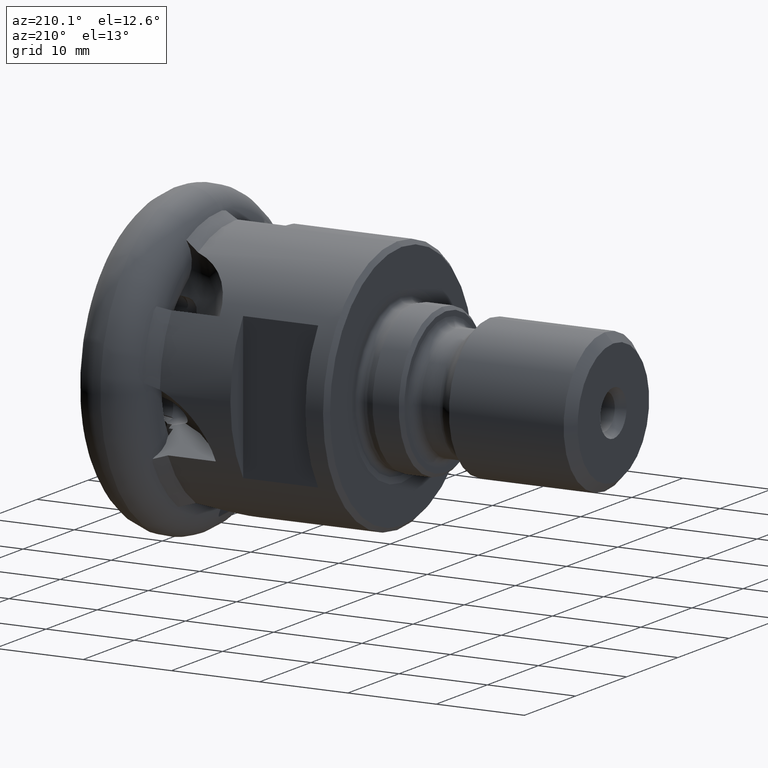
[diagram: clean part render]
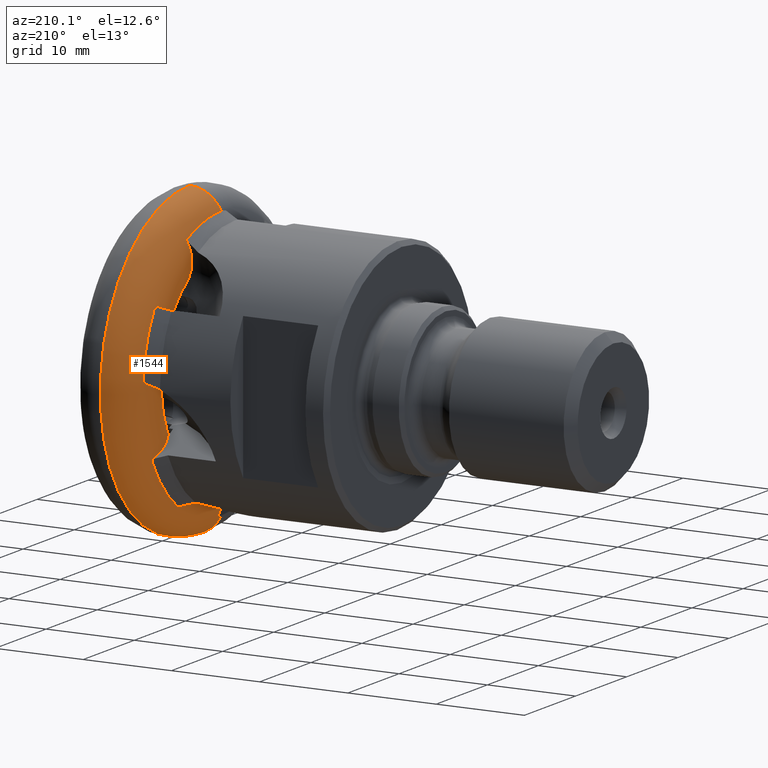
[diagram: same view with one face highlighted and labeled with its STEP entity id]
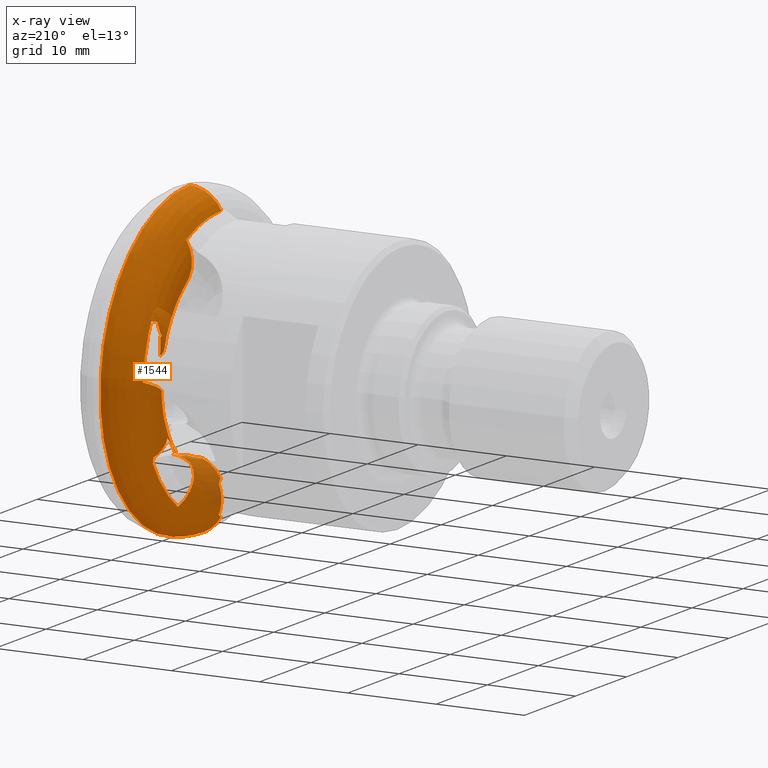
[diagram: x-ray of the same camera — body ghosted, the highlighted face saturated]
A machine part, auxiliary view. The second image highlights one B-rep face of the part: STEP entity #1544.
The next image is the same camera in x-ray: the body ghosted, the highlighted face saturated — about 4% of this face is hidden behind the body in this view.
In plain terms, the highlighted toroidal blend (fillet) surface has major radius 13.5005 mm and minor (blend) radius 4 mm.
Its self-contained STEP definition (entity closure, byte-faithful):
#9 = VERTEX_POINT ( 'NONE', #4791 ) ;
#43 = CARTESIAN_POINT ( 'NONE',  ( -6.970320713691037900, 10.40394991151712600, 6.815013658915133600 ) ) ;
#60 = CARTESIAN_POINT ( 'NONE',  ( -5.986730787056101700, 6.288281332381972200, 8.678202879827644300 ) ) ;
#67 = CARTESIAN_POINT ( 'NONE',  ( -3.481183792056709200, 9.413425898289794700, -1.378572529493553100 ) ) ;
#79 = ORIENTED_EDGE ( 'NONE', *, *, #5759, .F. ) ;
#84 = VERTEX_POINT ( 'NONE', #8210 ) ;
#86 = CARTESIAN_POINT ( 'NONE',  ( -6.722760441309596900, 0.4710116724698273400, -11.78001899677491500 ) ) ;
#91 = CARTESIAN_POINT ( 'NONE',  ( -7.019371207810117100, 14.34732973608849000, 0.6689121888450262300 ) ) ;
#117 = B_SPLINE_CURVE_WITH_KNOTS ( 'NONE', 3,
 ( #7926, #2093, #5407, #3491 ),
 .UNSPECIFIED., .F., .F.,
 ( 4, 4 ),
 ( 0.006134152128898172900, 0.006163361961100824800 ),
 .UNSPECIFIED. ) ;
#119 = EDGE_CURVE ( 'NONE', #6635, #3023, #4309, .T. ) ;
#121 = VERTEX_POINT ( 'NONE', #6385 ) ;
#129 = CARTESIAN_POINT ( 'NONE',  ( -5.526633514398452200, 7.276038415924639400, -7.314251030014575300 ) ) ;
#141 = CARTESIAN_POINT ( 'NONE',  ( -5.162852589870918300, 8.377416124794359900, -5.588764644931055500 ) ) ;
#148 = CARTESIAN_POINT ( 'NONE',  ( -6.714285215743751100, 9.966705976618239800, 6.261205032704414600 ) ) ;
#149 = ORIENTED_EDGE ( 'NONE', *, *, #6216, .T. ) ;
#151 = DIRECTION ( 'NONE',  ( 0.0000000000000000000, 0.0000000000000000000, -1.000000000000000000 ) ) ;
#179 = CARTESIAN_POINT ( 'NONE',  ( -3.703226784205822900, 8.602641880861920500, -4.110547972345755400 ) ) ;
#189 = CARTESIAN_POINT ( 'NONE',  ( -6.783404308883628000, 13.41843757786559800, -6.863001976314252200 ) ) ;
#218 = CARTESIAN_POINT ( 'NONE',  ( -6.445010153533528000, 8.529960899617158500, -7.409172669915280500 ) ) ;
#223 = CARTESIAN_POINT ( 'NONE',  ( -5.176037658426658100, 9.101560984280702400, 4.328633947039207000 ) ) ;
#225 = VERTEX_POINT ( 'NONE', #223 ) ;
#233 = CARTESIAN_POINT ( 'NONE',  ( -3.104893265785153600, 8.573260646012569100, -4.093755213144413900 ) ) ;
#235 = CARTESIAN_POINT ( 'NONE',  ( -3.481184526236251300, 3.474222297960039900, -8.856795722764188000 ) ) ;
#239 = CIRCLE ( 'NONE', #5200, 15.33755113536582500 ) ;
#242 = CARTESIAN_POINT ( 'NONE',  ( -6.876233390981617800, 6.738145968232669400, 13.24279356623489300 ) ) ;
#284 = VERTEX_POINT ( 'NONE', #6041 ) ;
#289 = ORIENTED_EDGE ( 'NONE', *, *, #629, .F. ) ;
#324 = ORIENTED_EDGE ( 'NONE', *, *, #595, .T. ) ;
#361 = CARTESIAN_POINT ( 'NONE',  ( -6.428181554940599600, 9.454371384974514600, -6.142278772953953400 ) ) ;
#362 = CARTESIAN_POINT ( 'NONE',  ( -6.146889535571781400, 6.288428992730740900, 8.894433927067829900 ) ) ;
#382 = CARTESIAN_POINT ( 'NONE',  ( -5.441405552378646400, 3.840656990347505400, -9.498386720059722100 ) ) ;
#430 = CARTESIAN_POINT ( 'NONE',  ( -3.405340194388836400, 0.6999999999999988500, -9.483217836396102400 ) ) ;
#440 = CARTESIAN_POINT ( 'NONE',  ( -6.565155809997676800, 5.152788816856125100, -10.25865581496785400 ) ) ;
#468 = CARTESIAN_POINT ( 'NONE',  ( -5.549766439993623700, 9.999784225591726600, 2.609498639324298700 ) ) ;
#471 = CARTESIAN_POINT ( 'NONE',  ( -6.783404308883628000, 13.41843757786559800, -6.863001976314252200 ) ) ;
#480 = CARTESIAN_POINT ( 'NONE',  ( -3.104893265785153600, 0.0000000000000000000, 0.0000000000000000000 ) ) ;
#506 = DIRECTION ( 'NONE',  ( 0.0000000000000000000, 0.0000000000000000000, -1.000000000000000000 ) ) ;
#512 = CARTESIAN_POINT ( 'NONE',  ( -6.658098605453361100, 0.0000000000000000000, -15.33755113536582300 ) ) ;
#534 = B_SPLINE_CURVE_WITH_KNOTS ( 'NONE', 3,
 ( #4474, #5099, #242, #1936, #6422, #5909, #7814, #875, #2578, #1447, #7194, #3354, #7845, #362, #60, #552, #6706, #7908 ),
 .UNSPECIFIED., .F., .F.,
 ( 4, 2, 2, 2, 2, 2, 2, 2, 4 ),
 ( 0.001267977658628080700, 0.002075521505515490000, 0.002883065352402899200, 0.003690609199290308300, 0.004498153046177717400, 0.005305696893065127400, 0.006113240739952536600, 0.006920784586839945700, 0.007728328433727354800 ),
 .UNSPECIFIED. ) ;
#541 = CARTESIAN_POINT ( 'NONE',  ( -5.068518935321786300, 8.348301740635276900, -5.530418801629351400 ) ) ;
#552 = CARTESIAN_POINT ( 'NONE',  ( -5.634825919918244000, 6.296745863331476100, 8.269304623586075200 ) ) ;
#595 = EDGE_CURVE ( 'NONE', #6305, #641, #1587, .T. ) ;
#604 = ORIENTED_EDGE ( 'NONE', *, *, #8019, .T. ) ;
#608 = CARTESIAN_POINT ( 'NONE',  ( -5.549766439986472100, 7.291808644349362800, -7.323571150818859900 ) ) ;
#616 = ORIENTED_EDGE ( 'NONE', *, *, #964, .F. ) ;
#621 = CARTESIAN_POINT ( 'NONE',  ( -7.011255456247892100, 12.60623012508805700, -0.05973010300835284600 ) ) ;
#629 = EDGE_CURVE ( 'NONE', #7293, #7925, #1333, .T. ) ;
#637 = CIRCLE ( 'NONE', #1820, 9.500506820670933500 ) ;
#641 = VERTEX_POINT ( 'NONE', #7740 ) ;
#686 = CARTESIAN_POINT ( 'NONE',  ( -3.104893265785153100, 0.0000000000000000000, -13.50050682067093400 ) ) ;
#703 = CARTESIAN_POINT ( 'NONE',  ( -7.111815171701498400, 13.59453455025688700, 0.3693514880282722800 ) ) ;
#704 = CARTESIAN_POINT ( 'NONE',  ( -3.291768926532924900, 9.399838369368865200, -1.379372494780059600 ) ) ;
#706 = CARTESIAN_POINT ( 'NONE',  ( -7.104812254949461400, 11.09084347400619600, 7.211591842122812700 ) ) ;
#727 = CARTESIAN_POINT ( 'NONE',  ( -7.066754952566391500, 14.09653152980931900, 0.5716623442200303700 ) ) ;
#740 = DIRECTION ( 'NONE',  ( -0.0000000000000000000, -1.000000000000000000, -0.0000000000000000000 ) ) ;
#746 = CARTESIAN_POINT ( 'NONE',  ( -6.890005455821287800, 13.20151712067918300, -6.739021720819422100 ) ) ;
#750 = CARTESIAN_POINT ( 'NONE',  ( -4.762039635478288300, 8.380537607763260500, -5.194295295747810600 ) ) ;
#773 = CARTESIAN_POINT ( 'NONE',  ( -6.658098605453361100, 15.30387043854282000, 1.015886032120111300 ) ) ;
#794 = CARTESIAN_POINT ( 'NONE',  ( -5.014458720676564100, 8.196671131223908400, -5.703477857250914200 ) ) ;
#829 = EDGE_CURVE ( 'NONE', #1256, #5984, #7781, .T. ) ;
#861 = EDGE_CURVE ( 'NONE', #6635, #284, #6313, .T. ) ;
#875 = CARTESIAN_POINT ( 'NONE',  ( -7.059852444246653900, 6.430490083022506900, 11.12821481797545400 ) ) ;
#881 = CARTESIAN_POINT ( 'NONE',  ( -6.542800951558716000, 8.851931731388456000, -7.271411704778588000 ) ) ;
#919 = CARTESIAN_POINT ( 'NONE',  ( -3.104893265785153100, 0.0000000000000000000, 0.0000000000000000000 ) ) ;
#933 = CARTESIAN_POINT ( 'NONE',  ( -6.351622984169956100, 8.310414897852618700, -7.453186348286485500 ) ) ;
#964 = EDGE_CURVE ( 'NONE', #1630, #1151, #4202, .T. ) ;
#1013 = CARTESIAN_POINT ( 'NONE',  ( -5.235932925998974400, 3.682660957084654500, -9.421260893485646500 ) ) ;
#1019 = DIRECTION ( 'NONE',  ( 1.000000000000000000, -0.0000000000000000000, -0.0000000000000000000 ) ) ;
#1024 = CARTESIAN_POINT ( 'NONE',  ( -5.120793945391356200, 8.282720735887137300, -5.683291328427290300 ) ) ;
#1039 = CARTESIAN_POINT ( 'NONE',  ( -6.356243072796336200, 10.09808324848566300, 4.775958443424409300 ) ) ;
#1064 = CARTESIAN_POINT ( 'NONE',  ( -6.317735222528299700, 10.12549213856185100, 4.591103403730957500 ) ) ;
#1065 = ORIENTED_EDGE ( 'NONE', *, *, #7799, .T. ) ;
#1088 = B_SPLINE_CURVE_WITH_KNOTS ( 'NONE', 3,
 ( #2890, #5458, #430, #7385, #2189, #5486 ),
 .UNSPECIFIED., .F., .F.,
 ( 4, 2, 4 ),
 ( 0.02290347511732795600, 0.02335054262319899400, 0.02379761012907003300 ),
 .UNSPECIFIED. ) ;
#1092 = CARTESIAN_POINT ( 'NONE',  ( -7.111815171701489500, 7.066502927656380000, -11.61948047604800700 ) ) ;
#1094 = ORIENTED_EDGE ( 'NONE', *, *, #6834, .T. ) ;
#1142 = CARTESIAN_POINT ( 'NONE',  ( -7.104973918217274900, 12.28642943771573600, -6.216006020937856000 ) ) ;
#1148 = DIRECTION ( 'NONE',  ( 0.0000000000000000000, 0.0000000000000000000, -1.000000000000000000 ) ) ;
#1151 = VERTEX_POINT ( 'NONE', #5048 ) ;
#1160 = CARTESIAN_POINT ( 'NONE',  ( -6.700975553333893100, 0.3887529831324662000, -15.25053699560704400 ) ) ;
#1180 = VERTEX_POINT ( 'NONE', #1415 ) ;
#1203 = CARTESIAN_POINT ( 'NONE',  ( -5.549766439993623700, 9.999784225591726600, 2.609498639324298700 ) ) ;
#1204 = VERTEX_POINT ( 'NONE', #5851 ) ;
#1245 = CARTESIAN_POINT ( 'NONE',  ( -6.888762001448129400, 10.90107517644082700, -5.424210827937166400 ) ) ;
#1251 = CARTESIAN_POINT ( 'NONE',  ( -3.104893265785153100, 0.0000000000000000000, -13.50050682067093400 ) ) ;
#1256 = VERTEX_POINT ( 'NONE', #7767 ) ;
#1259 = CARTESIAN_POINT ( 'NONE',  ( -6.146889535571773400, 10.85127470793210400, -0.9513838828699374700 ) ) ;
#1333 = B_SPLINE_CURVE_WITH_KNOTS ( 'NONE', 3,
 ( #5775, #6507, #43, #7085, #706, #6533, #7060, #5134, #2663, #2611 ),
 .UNSPECIFIED., .F., .F.,
 ( 4, 2, 2, 2, 4 ),
 ( 0.0009457121876681516600, 0.001749714657068324100, 0.002553717126468496800, 0.003357719595868669000, 0.004161722065268841200 ),
 .UNSPECIFIED. ) ;
#1349 = ORIENTED_EDGE ( 'NONE', *, *, #2805, .T. ) ;
#1355 = CARTESIAN_POINT ( 'NONE',  ( -6.660624437181574800, 0.2363891090702586500, -11.66385597508563500 ) ) ;
#1367 = DIRECTION ( 'NONE',  ( 0.0000000000000000000, 0.0000000000000000000, -1.000000000000000000 ) ) ;
#1371 = CARTESIAN_POINT ( 'NONE',  ( -4.479439307499884400, 8.492980344702814900, -4.772198584327368200 ) ) ;
#1387 = B_SPLINE_CURVE_WITH_KNOTS ( 'NONE', 3,
 ( #6149, #8074, #6215, #1751 ),
 .UNSPECIFIED., .F., .F.,
 ( 4, 4 ),
 ( 0.001019876134274635800, 0.001582158883301234600 ),
 .UNSPECIFIED. ) ;
#1415 = CARTESIAN_POINT ( 'NONE',  ( -5.235932925998970900, 10.00692468306288100, -1.477703263671182400 ) ) ;
#1423 = CARTESIAN_POINT ( 'NONE',  ( -4.700000000010081900, 8.405222315174881900, -5.101631828950560900 ) ) ;
#1429 = B_SPLINE_CURVE_WITH_KNOTS ( 'NONE', 3,
 ( #6104, #7844, #4299, #5264 ),
 .UNSPECIFIED., .F., .F.,
 ( 4, 4 ),
 ( 0.002032757074642704000, 0.002239713388384492900 ),
 .UNSPECIFIED. ) ;
#1447 = CARTESIAN_POINT ( 'NONE',  ( -6.872810776817759800, 6.355411711259567800, 10.33902770710988000 ) ) ;
#1448 = ORIENTED_EDGE ( 'NONE', *, *, #5186, .T. ) ;
#1453 = CARTESIAN_POINT ( 'NONE',  ( -5.118186171614695500, 7.880937583434358900, -6.255896992557931700 ) ) ;
#1478 = CARTESIAN_POINT ( 'NONE',  ( -6.547255527438707600, 9.084638155943970600, -6.992189204515612200 ) ) ;
#1496 = EDGE_CURVE ( 'NONE', #7641, #1204, #2602, .T. ) ;
#1537 = CARTESIAN_POINT ( 'NONE',  ( -3.994335486813716000, 0.6999999999999954000, -9.575095691116374000 ) ) ;
#1544 = ADVANCED_FACE ( 'NONE', ( #8047 ), #6153, .T. ) ;
#1586 = B_SPLINE_CURVE_WITH_KNOTS ( 'NONE', 3,
 ( #4706, #7012, #3752, #2968, #6801, #5476, #2236, #4167 ),
 .UNSPECIFIED., .F., .F.,
 ( 4, 2, 2, 4 ),
 ( 0.0003858276407882750300, 0.001507608961240440200, 0.002068499621466522500, 0.002629390281692605100 ),
 .UNSPECIFIED. ) ;
#1587 = B_SPLINE_CURVE_WITH_KNOTS ( 'NONE', 3,
 ( #8277, #5653, #7662, #5103 ),
 .UNSPECIFIED., .F., .F.,
 ( 4, 4 ),
 ( 3.678398808506670700E-007, 0.001217314157859113500 ),
 .UNSPECIFIED. ) ;
#1630 = VERTEX_POINT ( 'NONE', #5704 ) ;
#1634 = B_SPLINE_CURVE_WITH_KNOTS ( 'NONE', 3,
 ( #5687, #5764, #7562, #6314 ),
 .UNSPECIFIED., .F., .F.,
 ( 4, 4 ),
 ( 5.251364187249700300E-007, 0.001925148963833852400 ),
 .UNSPECIFIED. ) ;
#1651 = CARTESIAN_POINT ( 'NONE',  ( -4.523411842740150000, -1.124842002682586900E-013, -9.760479408093107900 ) ) ;
#1662 = EDGE_CURVE ( 'NONE', #5437, #6305, #4968, .T. ) ;
#1673 = DIRECTION ( 'NONE',  ( 0.0000000000000000000, 0.0000000000000000000, -1.000000000000000000 ) ) ;
#1688 = ORIENTED_EDGE ( 'NONE', *, *, #4639, .T. ) ;
#1689 = EDGE_CURVE ( 'NONE', #6337, #4982, #7939, .T. ) ;
#1698 = CARTESIAN_POINT ( 'NONE',  ( -6.330548564770531100, 10.11651007219151700, 4.652750559750821000 ) ) ;
#1735 = B_SPLINE_CURVE_WITH_KNOTS ( 'NONE', 3,
 ( #6778, #5544, #3060, #1844 ),
 .UNSPECIFIED., .F., .F.,
 ( 4, 4 ),
 ( 0.001370619716810989500, 0.002264661689257288700 ),
 .UNSPECIFIED. ) ;
#1734 = CARTESIAN_POINT ( 'NONE',  ( -5.014458720676564100, 8.196671131223908400, -5.703477857250914200 ) ) ;
#1751 = CARTESIAN_POINT ( 'NONE',  ( -6.783404308883627100, 12.68836444376666300, 8.133921004050069600 ) ) ;
#1781 = VERTEX_POINT ( 'NONE', #1980 ) ;
#1794 = VERTEX_POINT ( 'NONE', #3169 ) ;
#1820 = AXIS2_PLACEMENT_3D ( 'NONE', #480, #6819, #6871 ) ;
#1844 = CARTESIAN_POINT ( 'NONE',  ( -3.994335486813721300, 7.942276112173749100, 5.393765628207216200 ) ) ;
#1856 = AXIS2_PLACEMENT_3D ( 'NONE', #1890, #5136, #6357 ) ;
#1862 = ORIENTED_EDGE ( 'NONE', *, *, #4066, .F. ) ;
#1869 = CARTESIAN_POINT ( 'NONE',  ( -6.970320713683625200, 11.12828999091046400, -5.554074793353517900 ) ) ;
#1878 = B_SPLINE_CURVE_WITH_KNOTS ( 'NONE', 3,
 ( #7249, #5319, #5287, #7870, #4034, #235, #4678, #6607 ),
 .UNSPECIFIED., .F., .F.,
 ( 4, 2, 2, 4 ),
 ( 0.0003855135442274141400, 0.001507294405591666800, 0.002068184836273793100, 0.002629075266955919400 ),
 .UNSPECIFIED. ) ;
#1890 = CARTESIAN_POINT ( 'NONE',  ( -3.104893265785153100, 1.653335246480166800E-015, 13.50050682067093400 ) ) ;
#1910 = EDGE_CURVE ( 'NONE', #1204, #6398, #4601, .T. ) ;
#1922 = ORIENTED_EDGE ( 'NONE', *, *, #1689, .F. ) ;
#1936 = CARTESIAN_POINT ( 'NONE',  ( -7.019371207810133100, 6.649981262544495800, 12.73071338457675200 ) ) ;
#1951 = CARTESIAN_POINT ( 'NONE',  ( -5.171352475123810200, 9.083745316919507900, 4.359491588079542600 ) ) ;
#1956 = CARTESIAN_POINT ( 'NONE',  ( -7.059852444246653900, 12.85246063278492700, 0.05121938668881521900 ) ) ;
#1980 = CARTESIAN_POINT ( 'NONE',  ( -5.014458720676564100, 9.056136290551338100, 4.207311824496722300 ) ) ;
#2001 = EDGE_CURVE ( 'NONE', #225, #5437, #5485, .T. ) ;
#2006 = CARTESIAN_POINT ( 'NONE',  ( -6.500226610163879900, 10.03848502410502200, 5.369331107019995400 ) ) ;
#2073 = CARTESIAN_POINT ( 'NONE',  ( -3.104893265785153100, 2.143193966139108100E-015, 17.50050682067093200 ) ) ;
#2089 = AXIS2_PLACEMENT_3D ( 'NONE', #919, #4116, #4761 ) ;
#2093 = CARTESIAN_POINT ( 'NONE',  ( -5.542093147126660600, 7.286472912062419200, -7.320521528571234200 ) ) ;
#2146 = DIRECTION ( 'NONE',  ( 1.000000000000000000, -0.0000000000000000000, -0.0000000000000000000 ) ) ;
#2173 = B_SPLINE_CURVE_WITH_KNOTS ( 'NONE', 3,
 ( #7073, #86, #1355, #3220 ),
 .UNSPECIFIED., .F., .F.,
 ( 4, 4 ),
 ( 2.349948512601194600E-007, 0.0008073949922693967600 ),
 .UNSPECIFIED. ) ;
#2179 = CARTESIAN_POINT ( 'NONE',  ( -5.734273905027242400, 7.436155582530623100, -7.390624633311177600 ) ) ;
#2186 = ORIENTED_EDGE ( 'NONE', *, *, #7923, .T. ) ;
#2189 = CARTESIAN_POINT ( 'NONE',  ( -3.848729289576332300, 0.6999999999999987300, -9.541798602211448700 ) ) ;
#2236 = CARTESIAN_POINT ( 'NONE',  ( -3.291767177276281300, 5.926944894815450800, 7.425022159120873200 ) ) ;
#2259 = CARTESIAN_POINT ( 'NONE',  ( -3.994335486813716000, 0.6999999999999954000, -9.575095691116374000 ) ) ;
#2272 = CARTESIAN_POINT ( 'NONE',  ( -5.171352475123876900, 8.342038123195960600, -5.650663309766330600 ) ) ;
#2278 = B_SPLINE_CURVE_WITH_KNOTS ( 'NONE', 3,
 ( #4050, #4780, #2724, #5297, #1478, #4752, #881, #7852, #218, #933, #6035, #7315, #7960, #4020, #5389, #2179, #4077, #6679 ),
 .UNSPECIFIED., .F., .F.,
 ( 4, 2, 2, 2, 2, 2, 2, 2, 4 ),
 ( 0.003240353504578194800, 0.003602078332618191100, 0.003963803160658187400, 0.004325527988698183200, 0.004687252816738180000, 0.005048977644778175800, 0.005410702472818171600, 0.005772427300858171800, 0.006134152128898172900 ),
 .UNSPECIFIED. ) ;
#2281 = CARTESIAN_POINT ( 'NONE',  ( -7.059852444246661000, 6.422071689626013900, -11.13307517966906900 ) ) ;
#2283 = CARTESIAN_POINT ( 'NONE',  ( -6.356243072797318500, 9.212794033438124000, -6.317079265299894600 ) ) ;
#2286 = CARTESIAN_POINT ( 'NONE',  ( -5.526633514398452200, 7.276038415924639400, -7.314251030014575300 ) ) ;
#2323 = ORIENTED_EDGE ( 'NONE', *, *, #4755, .F. ) ;
#2334 = VERTEX_POINT ( 'NONE', #6940 ) ;
#2339 = CARTESIAN_POINT ( 'NONE',  ( -7.109741270719313300, 6.852719714397504300, -11.45508379996612900 ) ) ;
#2340 = CARTESIAN_POINT ( 'NONE',  ( -5.235932925998974400, 3.682660957084654500, -9.421260893485646500 ) ) ;
#2359 = CARTESIAN_POINT ( 'NONE',  ( -5.162852589870918300, 8.377416124794359900, -5.588764644931055500 ) ) ;
#2364 = CARTESIAN_POINT ( 'NONE',  ( -6.485337972804401800, 10.72556767530360800, 3.749150447379346700 ) ) ;
#2385 = B_SPLINE_CURVE_WITH_KNOTS ( 'NONE', 3,
 ( #3340, #148, #7834, #2006, #3311, #3403 ),
 .UNSPECIFIED., .F., .F.,
 ( 4, 2, 4 ),
 ( 8.873839780248049100E-007, 0.0009208887199631004500, 0.001840890055948176000 ),
 .UNSPECIFIED. ) ;
#2393 = CARTESIAN_POINT ( 'NONE',  ( -6.542737377977781300, 10.74056498834681300, 3.983478503585447900 ) ) ;
#2394 = CARTESIAN_POINT ( 'NONE',  ( -6.658098605453361100, 8.476024130455002100, -12.78270275684708500 ) ) ;
#2399 = CARTESIAN_POINT ( 'NONE',  ( -6.783404308878975700, 0.6999999999824277900, -11.90878745646951800 ) ) ;
#2451 = CARTESIAN_POINT ( 'NONE',  ( -4.700000000010081900, 8.405222315174881900, -5.101631828950560900 ) ) ;
#2456 = DIRECTION ( 'NONE',  ( -0.0000000000000000000, -1.000000000000000000, -0.0000000000000000000 ) ) ;
#2504 = CARTESIAN_POINT ( 'NONE',  ( -7.077664714744980000, 11.58530482869355400, -5.815280292771139300 ) ) ;
#2558 = EDGE_CURVE ( 'NONE', #121, #7925, #1387, .T. ) ;
#2578 = CARTESIAN_POINT ( 'NONE',  ( -7.011255456247884200, 6.402287669374839400, 10.85961869728647700 ) ) ;
#2588 = EDGE_CURVE ( 'NONE', #6269, #1151, #6107, .T. ) ;
#2602 = B_SPLINE_CURVE_WITH_KNOTS ( 'NONE', 3,
 ( #3505, #4841, #1024, #3563 ),
 .UNSPECIFIED., .F., .F.,
 ( 4, 4 ),
 ( 0.001419259395980736900, 0.001626157872492380000 ),
 .UNSPECIFIED. ) ;
#2604 = CARTESIAN_POINT ( 'NONE',  ( -6.872810776817768600, 12.13291025623644800, -0.2814971795832373300 ) ) ;
#2611 = CARTESIAN_POINT ( 'NONE',  ( -6.783404308883627100, 12.68836444376666300, 8.133921004050069600 ) ) ;
#2614 = ORIENTED_EDGE ( 'NONE', *, *, #119, .F. ) ;
#2621 = CARTESIAN_POINT ( 'NONE',  ( -4.982293769599778000, 8.344879469567736400, -5.451429163003288300 ) ) ;
#2663 = CARTESIAN_POINT ( 'NONE',  ( -6.890005455564355500, 12.47198701622810000, 8.008995438014123300 ) ) ;
#2707 = EDGE_CURVE ( 'NONE', #9, #3056, #534, .T. ) ;
#2717 = VERTEX_POINT ( 'NONE', #1537 ) ;
#2724 = CARTESIAN_POINT ( 'NONE',  ( -6.433162328672699100, 9.117100488126482100, -6.643425360611137100 ) ) ;
#2748 = EDGE_CURVE ( 'NONE', #5436, #3348, #637, .T. ) ;
#2758 = ORIENTED_EDGE ( 'NONE', *, *, #5632, .F. ) ;
#2763 = CARTESIAN_POINT ( 'NONE',  ( -3.104893265785153600, 0.6999999999999987300, -9.474683627943198500 ) ) ;
#2784 = ORIENTED_EDGE ( 'NONE', *, *, #2748, .T. ) ;
#2798 = B_SPLINE_CURVE_WITH_KNOTS ( 'NONE', 3,
 ( #3870, #5131, #5771, #3044, #4334, #67, #704, #3702 ),
 .UNSPECIFIED., .F., .F.,
 ( 4, 2, 2, 4 ),
 ( 0.0003855612234498924600, 0.001507342154370148000, 0.002068232619830275800, 0.002629123085290403800 ),
 .UNSPECIFIED. ) ;
#2805 = EDGE_CURVE ( 'NONE', #7205, #2717, #3360, .T. ) ;
#2836 = VERTEX_POINT ( 'NONE', #3762 ) ;
#2848 = ORIENTED_EDGE ( 'NONE', *, *, #2588, .T. ) ;
#2847 = CARTESIAN_POINT ( 'NONE',  ( -4.982344748702527000, 8.913098639710982600, 4.462329884547789200 ) ) ;
#2860 = CIRCLE ( 'NONE', #1856, 4.000000000000000000 ) ;
#2879 = CARTESIAN_POINT ( 'NONE',  ( -6.783404308883588000, 10.68654670429101100, -5.301597704523203400 ) ) ;
#2890 = CARTESIAN_POINT ( 'NONE',  ( -3.104893265785153600, 0.6999999999999987300, -9.474683627943198500 ) ) ;
#2921 = CARTESIAN_POINT ( 'NONE',  ( -5.176037658426651000, 8.324357266858976700, -5.681598392330540600 ) ) ;
#2968 = CARTESIAN_POINT ( 'NONE',  ( -4.034792195523980500, 5.978884136219631000, 7.518055826001225100 ) ) ;
#2987 = CARTESIAN_POINT ( 'NONE',  ( -6.783164657008655700, 5.566137429808289700, -10.53038756388650500 ) ) ;
#3023 = VERTEX_POINT ( 'NONE', #189 ) ;
#3037 = CARTESIAN_POINT ( 'NONE',  ( -5.162852589870918300, 8.377416124794359900, -5.588764644931055500 ) ) ;
#3040 = CARTESIAN_POINT ( 'NONE',  ( -6.783404308877270400, 0.6999999999999987300, -15.05540644281706600 ) ) ;
#3044 = CARTESIAN_POINT ( 'NONE',  ( -4.034790825072459300, 9.506369443101318600, -1.377371503993044100 ) ) ;
#3056 = VERTEX_POINT ( 'NONE', #4162 ) ;
#3060 = CARTESIAN_POINT ( 'NONE',  ( -3.703226784205828600, 7.884624397778403600, 5.360480395381821400 ) ) ;
#3070 = CARTESIAN_POINT ( 'NONE',  ( -7.104630984272872300, 0.6999999999999986200, -13.20927279695316300 ) ) ;
#3077 = CARTESIAN_POINT ( 'NONE',  ( -6.658098605453770500, 0.2268516899360618300, -15.33587340651697800 ) ) ;
#3090 = B_SPLINE_CURVE_WITH_KNOTS ( 'NONE', 3,
 ( #3782, #6365, #6936, #4488 ),
 .UNSPECIFIED., .F., .F.,
 ( 4, 4 ),
 ( 2.946873682583246800E-005, 0.0002202690524973389600 ),
 .UNSPECIFIED. ) ;
#3143 = CARTESIAN_POINT ( 'NONE',  ( -7.077455623647376900, 12.52118672181439200, -6.350180862902219800 ) ) ;
#3151 = CARTESIAN_POINT ( 'NONE',  ( -6.876233390981600900, 14.83409786293588800, 0.8507250554458001300 ) ) ;
#3169 = CARTESIAN_POINT ( 'NONE',  ( -3.104893265785153600, 5.926944894815449900, 7.425022159120872300 ) ) ;
#3191 = VERTEX_POINT ( 'NONE', #7559 ) ;
#3192 = CIRCLE ( 'NONE', #4668, 15.33755113536582500 ) ;
#3196 = CARTESIAN_POINT ( 'NONE',  ( -5.162852589870980500, 9.048097569075705900, 4.421235298520414900 ) ) ;
#3203 = EDGE_CURVE ( 'NONE', #9, #2334, #3192, .T. ) ;
#3211 = CARTESIAN_POINT ( 'NONE',  ( -5.314582849936189600, 7.577453398637066700, -6.786884187674816700 ) ) ;
#3220 = CARTESIAN_POINT ( 'NONE',  ( -6.598020591906922600, 4.012908531391959500E-016, -11.55164523412832400 ) ) ;
#3223 = EDGE_CURVE ( 'NONE', #2836, #3924, #8104, .T. ) ;
#3247 = EDGE_CURVE ( 'NONE', #7293, #5984, #2385, .T. ) ;
#3263 = AXIS2_PLACEMENT_3D ( 'NONE', #5172, #6490, #4510 ) ;
#3286 = CIRCLE ( 'NONE', #6239, 4.000000000000000000 ) ;
#3295 = VERTEX_POINT ( 'NONE', #4703 ) ;
#3311 = CARTESIAN_POINT ( 'NONE',  ( -6.428180323887856300, 10.06878526138754500, 5.072696398118448100 ) ) ;
#3333 = EDGE_CURVE ( 'NONE', #6337, #5547, #239, .T. ) ;
#3340 = CARTESIAN_POINT ( 'NONE',  ( -6.783404308883585400, 9.963312465580692400, 6.560611510888522300 ) ) ;
#3348 = VERTEX_POINT ( 'NONE', #4222 ) ;
#3354 = CARTESIAN_POINT ( 'NONE',  ( -6.565155809997690100, 6.307862136015146800, 9.591773923217640900 ) ) ;
#3360 = B_SPLINE_CURVE_WITH_KNOTS ( 'NONE', 3,
 ( #1651, #6218, #8013, #2259 ),
 .UNSPECIFIED., .F., .F.,
 ( 4, 4 ),
 ( 0.0003205618647324166100, 0.001217314157959298800 ),
 .UNSPECIFIED. ) ;
#3361 = ORIENTED_EDGE ( 'NONE', *, *, #5998, .F. ) ;
#3379 = EDGE_CURVE ( 'NONE', #1781, #225, #1429, .T. ) ;
#3403 = CARTESIAN_POINT ( 'NONE',  ( -6.356243072796336200, 10.09808324848566300, 4.775958443424409300 ) ) ;
#3408 = ORIENTED_EDGE ( 'NONE', *, *, #5213, .T. ) ;
#3410 = CARTESIAN_POINT ( 'NONE',  ( -4.700000000000003700, 8.641302981984797100, 4.690660109102953600 ) ) ;
#3491 = CARTESIAN_POINT ( 'NONE',  ( -5.526633514398452200, 7.276038415924639400, -7.314251030014575300 ) ) ;
#3505 = CARTESIAN_POINT ( 'NONE',  ( -5.014458720676564100, 8.196671131223908400, -5.703477857250914200 ) ) ;
#3517 = EDGE_CURVE ( 'NONE', #7205, #3295, #3286, .T. ) ;
#3523 = CARTESIAN_POINT ( 'NONE',  ( -6.658098605453361100, 8.476024130455002100, -12.78270275684708500 ) ) ;
#3526 = CARTESIAN_POINT ( 'NONE',  ( -6.317735222528299700, 10.12549213856185100, 4.591103403730957500 ) ) ;
#3548 = VERTEX_POINT ( 'NONE', #1423 ) ;
#3563 = CARTESIAN_POINT ( 'NONE',  ( -5.176037658426651000, 8.324357266858976700, -5.681598392330540600 ) ) ;
#3582 = CARTESIAN_POINT ( 'NONE',  ( -6.876233390981616900, 8.099522661316338900, -12.45680236601456100 ) ) ;
#3603 = CARTESIAN_POINT ( 'NONE',  ( -6.559685452030652900, 10.72444360235867900, 4.110090739844469700 ) ) ;
#3604 = VERTEX_POINT ( 'NONE', #6621 ) ;
#3638 = CARTESIAN_POINT ( 'NONE',  ( -5.634825919918227100, 4.013054943992000500, -9.587794190612633800 ) ) ;
#3676 = B_SPLINE_CURVE_WITH_KNOTS ( 'NONE', 3,
 ( #1203, #6340, #7049, #7726 ),
 .UNSPECIFIED., .F., .F.,
 ( 4, 4 ),
 ( 0.006748459756674317000, 0.006777718183376316200 ),
 .UNSPECIFIED. ) ;
#3677 = VERTEX_POINT ( 'NONE', #2286 ) ;
#3681 = CARTESIAN_POINT ( 'NONE',  ( -3.104893265785153100, 0.0000000000000000000, 0.0000000000000000000 ) ) ;
#3702 = CARTESIAN_POINT ( 'NONE',  ( -3.104893265785153600, 9.399838369368865200, -1.379372494780059600 ) ) ;
#3727 = B_SPLINE_CURVE_WITH_KNOTS ( 'NONE', 3,
 ( #1064, #7450, #8186, #6207, #6889, #8099, #5516, #3603, #2393, #2364, #7534, #6835, #4935, #4352, #4266, #468 ),
 .UNSPECIFIED., .F., .F.,
 ( 4, 2, 2, 2, 2, 2, 2, 4 ),
 ( 0.003855058648704998300, 0.004216733787201154400, 0.004397571356449235000, 0.004578408925697316500, 0.004940084064193483000, 0.005301759202689649400, 0.006025109479681983200, 0.006748459756674317000 ),
 .UNSPECIFIED. ) ;
#3729 = CARTESIAN_POINT ( 'NONE',  ( -6.888480213397889100, 0.6999999999999987300, -12.15522259789350200 ) ) ;
#3731 = ORIENTED_EDGE ( 'NONE', *, *, #2001, .T. ) ;
#3738 = CARTESIAN_POINT ( 'NONE',  ( -6.742824725583168400, 0.5467734449736417800, -15.15764088547171300 ) ) ;
#3752 = CARTESIAN_POINT ( 'NONE',  ( -4.572094692079584600, 6.065146120665498400, 7.647544154772151400 ) ) ;
#3762 = CARTESIAN_POINT ( 'NONE',  ( -3.104893265785153600, 8.573260646012569100, -4.093755213144413900 ) ) ;
#3782 = CARTESIAN_POINT ( 'NONE',  ( -6.317735222528300600, 9.066917572394054000, -6.433881196232937000 ) ) ;
#3787 = B_SPLINE_CURVE_WITH_KNOTS ( 'NONE', 3,
 ( #129, #3211, #1453, #794 ),
 .UNSPECIFIED., .F., .F.,
 ( 4, 4 ),
 ( 5.245258236420850500E-007, 0.001925148353454998600 ),
 .UNSPECIFIED. ) ;
#3809 = CARTESIAN_POINT ( 'NONE',  ( -5.235932925998970900, 10.00692468306288100, -1.477703263671182400 ) ) ;
#3849 = ORIENTED_EDGE ( 'NONE', *, *, #4396, .T. ) ;
#3870 = CARTESIAN_POINT ( 'NONE',  ( -5.235932925998970900, 10.00692468306288100, -1.477703263671182400 ) ) ;
#3901 = CARTESIAN_POINT ( 'NONE',  ( -6.658098605453361100, 15.30387043854282000, 1.015886032120111300 ) ) ;
#3924 = VERTEX_POINT ( 'NONE', #8249 ) ;
#3968 = CARTESIAN_POINT ( 'NONE',  ( -4.250249774938015300, 8.579157464531684600, -4.448699887396519300 ) ) ;
#3969 = CARTESIAN_POINT ( 'NONE',  ( -6.783404308883627100, 12.68836444376666300, 8.133921004050069600 ) ) ;
#4020 = CARTESIAN_POINT ( 'NONE',  ( -5.974477049483445200, 7.696534903404588200, -7.450614588256668100 ) ) ;
#4034 = CARTESIAN_POINT ( 'NONE',  ( -3.852472364281240400, 3.501596342136242200, -8.902644117621935700 ) ) ;
#4050 = CARTESIAN_POINT ( 'NONE',  ( -6.317735222528300600, 9.066917572394054000, -6.433881196232937000 ) ) ;
#4066 = EDGE_CURVE ( 'NONE', #5436, #2717, #1088, .T. ) ;
#4069 = CARTESIAN_POINT ( 'NONE',  ( -4.762064865342106000, 8.708940956803667500, 4.622627483391383400 ) ) ;
#4077 = CARTESIAN_POINT ( 'NONE',  ( -5.644789941695051100, 7.357884574898061000, -7.361336656469694300 ) ) ;
#4116 = DIRECTION ( 'NONE',  ( 1.000000000000000000, -0.0000000000000000000, -0.0000000000000000000 ) ) ;
#4127 = CARTESIAN_POINT ( 'NONE',  ( -6.714288514802373000, 10.42963058370669800, -5.455354992917511600 ) ) ;
#4146 = CARTESIAN_POINT ( 'NONE',  ( -6.658098605448426400, 13.42715466312562000, -7.412961114343072000 ) ) ;
#4162 = CARTESIAN_POINT ( 'NONE',  ( -5.235932925998981500, 6.317720790897198000, 7.899908389103202000 ) ) ;
#4167 = CARTESIAN_POINT ( 'NONE',  ( -3.104893265785153600, 5.926944894815449900, 7.425022159120872300 ) ) ;
#4178 = CIRCLE ( 'NONE', #4428, 15.33755113536582500 ) ;
#4185 = CARTESIAN_POINT ( 'NONE',  ( -6.146889535571783200, 4.558591236757652400, -9.893156221133285300 ) ) ;
#4201 = B_SPLINE_CURVE_WITH_KNOTS ( 'NONE', 3,
 ( #3901, #7026, #3151, #91, #727, #703, #5157, #1956, #621, #2604, #4550, #5072, #6376, #1259, #6975, #7625, #5721, #3809 ),
 .UNSPECIFIED., .F., .F.,
 ( 4, 2, 2, 2, 2, 2, 2, 2, 4 ),
 ( 0.001267977658628075000, 0.002075521505515485700, 0.002883065352402896600, 0.003690609199290307400, 0.004498153046177718300, 0.005305696893065128300, 0.006113240739952539200, 0.006920784586839950000, 0.007728328433727360900 ),
 .UNSPECIFIED. ) ;
#4202 = B_SPLINE_CURVE_WITH_KNOTS ( 'NONE', 3,
 ( #2399, #3729, #6915, #4328, #3070, #5585, #7539, #3040 ),
 .UNSPECIFIED., .F., .F.,
 ( 4, 2, 2, 4 ),
 ( 0.02233797887732064800, 0.02314095782304648500, 0.02394393676877232600, 0.02554989466022400700 ),
 .UNSPECIFIED. ) ;
#4206 = CIRCLE ( 'NONE', #5961, 9.500506820670933500 ) ;
#4222 = CARTESIAN_POINT ( 'NONE',  ( -3.104893265785153600, 3.466785366053415800, -8.845395925301073000 ) ) ;
#4226 = CARTESIAN_POINT ( 'NONE',  ( -6.783404308883588000, 10.68654670429101100, -5.301597704523203400 ) ) ;
#4266 = CARTESIAN_POINT ( 'NONE',  ( -5.739281735947174400, 10.13123645882866200, 2.685392621569218100 ) ) ;
#4268 = CARTESIAN_POINT ( 'NONE',  ( -6.700836757281014600, 13.43338355709050100, -7.230645355130829600 ) ) ;
#4299 = CARTESIAN_POINT ( 'NONE',  ( -5.120542506179266900, 9.081959189351065800, 4.291646391722191600 ) ) ;
#4309 = B_SPLINE_CURVE_WITH_KNOTS ( 'NONE', 3,
 ( #5062, #1245, #1869, #2504, #6990, #1142, #3143, #4960, #746, #4538 ),
 .UNSPECIFIED., .F., .F.,
 ( 4, 2, 2, 2, 4 ),
 ( 0.0009457121876681613100, 0.001749714657031283600, 0.002553717126394405800, 0.003357719595757528300, 0.004161722065120650700 ),
 .UNSPECIFIED. ) ;
#4328 = CARTESIAN_POINT ( 'NONE',  ( -7.077543993105797100, 0.6999999999999987300, -12.94298744827469400 ) ) ;
#4334 = CARTESIAN_POINT ( 'NONE',  ( -3.852472453645345400, 9.466814960264983400, -1.377557143673830800 ) ) ;
#4352 = CARTESIAN_POINT ( 'NONE',  ( -5.904747774066786200, 10.25715026294303200, 2.816862180258084400 ) ) ;
#4394 = CARTESIAN_POINT ( 'NONE',  ( -6.783404308877270400, 0.6999999999999987300, -15.05540644281706600 ) ) ;
#4396 = EDGE_CURVE ( 'NONE', #3548, #3924, #4920, .T. ) ;
#4398 = ORIENTED_EDGE ( 'NONE', *, *, #7048, .T. ) ;
#4406 = CARTESIAN_POINT ( 'NONE',  ( -4.700000000000003700, 8.641302981984797100, 4.690660109102953600 ) ) ;
#4428 = AXIS2_PLACEMENT_3D ( 'NONE', #5256, #2146, #151 ) ;
#4474 = CARTESIAN_POINT ( 'NONE',  ( -6.658098605453361100, 6.832133251227581600, 13.73180359848741500 ) ) ;
#4488 = CARTESIAN_POINT ( 'NONE',  ( -6.356243072797318500, 9.212794033438124000, -6.317079265299894600 ) ) ;
#4506 = ORIENTED_EDGE ( 'NONE', *, *, #3223, .F. ) ;
#4510 = DIRECTION ( 'NONE',  ( 0.0000000000000000000, 0.0000000000000000000, -1.000000000000000000 ) ) ;
#4538 = CARTESIAN_POINT ( 'NONE',  ( -6.783404308883628000, 13.41843757786559800, -6.863001976314252200 ) ) ;
#4550 = CARTESIAN_POINT ( 'NONE',  ( -6.783164657008660100, 11.90447925347263900, -0.3928381814535979500 ) ) ;
#4601 = B_SPLINE_CURVE_WITH_KNOTS ( 'NONE', 3,
 ( #2921, #2272, #7413, #2359 ),
 .UNSPECIFIED., .F., .F.,
 ( 4, 4 ),
 ( 0.0003518939382690191600, 0.0004592416822441889200 ),
 .UNSPECIFIED. ) ;
#4614 = CARTESIAN_POINT ( 'NONE',  ( -6.783404308883585400, 9.963312465580692400, 6.560611510888522300 ) ) ;
#4639 = EDGE_CURVE ( 'NONE', #2836, #6826, #6502, .T. ) ;
#4668 = AXIS2_PLACEMENT_3D ( 'NONE', #5084, #5736, #1367 ) ;
#4678 = CARTESIAN_POINT ( 'NONE',  ( -3.291769239860824500, 3.466785366053418500, -8.845395925301076500 ) ) ;
#4693 = CARTESIAN_POINT ( 'NONE',  ( -6.658098605453361100, 0.0000000000000000000, 0.0000000000000000000 ) ) ;
#4703 = CARTESIAN_POINT ( 'NONE',  ( -6.598020591906922600, 4.012908531391959500E-016, -11.55164523412832400 ) ) ;
#4706 = CARTESIAN_POINT ( 'NONE',  ( -5.235932925998981500, 6.317720790897198000, 7.899908389103202000 ) ) ;
#4722 = ORIENTED_EDGE ( 'NONE', *, *, #6298, .F. ) ;
#4752 = CARTESIAN_POINT ( 'NONE',  ( -6.559644862562206100, 8.951993022216498700, -7.194925234916730100 ) ) ;
#4755 = EDGE_CURVE ( 'NONE', #1180, #6826, #2798, .T. ) ;
#4761 = DIRECTION ( 'NONE',  ( 0.0000000000000000000, 0.0000000000000000000, -1.000000000000000000 ) ) ;
#4771 = ORIENTED_EDGE ( 'NONE', *, *, #2707, .F. ) ;
#4780 = CARTESIAN_POINT ( 'NONE',  ( -6.378932533037228400, 9.096745992824338600, -6.534432796415226000 ) ) ;
#4791 = CARTESIAN_POINT ( 'NONE',  ( -6.658098605453361100, 6.832133251227581600, 13.73180359848741500 ) ) ;
#4806 = CARTESIAN_POINT ( 'NONE',  ( -6.343385686057240800, 10.10736578561234100, 4.714367413844215100 ) ) ;
#4841 = CARTESIAN_POINT ( 'NONE',  ( -5.066786154949809900, 8.240334811589884000, -5.690501919757351400 ) ) ;
#4885 = CARTESIAN_POINT ( 'NONE',  ( -6.435821335977132100, 4.948528408749521800, -10.12951510708502500 ) ) ;
#4915 = EDGE_CURVE ( 'NONE', #5740, #3677, #117, .T. ) ;
#4920 = B_SPLINE_CURVE_WITH_KNOTS ( 'NONE', 3,
 ( #2451, #1371, #3968, #7816 ),
 .UNSPECIFIED., .F., .F.,
 ( 4, 4 ),
 ( 3.678399450792985900E-007, 0.001217314157959208200 ),
 .UNSPECIFIED. ) ;
#4923 = ORIENTED_EDGE ( 'NONE', *, *, #3203, .T. ) ;
#4935 = CARTESIAN_POINT ( 'NONE',  ( -6.186812365320882600, 10.48472800108521400, 3.133081563894248400 ) ) ;
#4960 = CARTESIAN_POINT ( 'NONE',  ( -6.970225051594766800, 12.97712910727341100, -6.610773405317679900 ) ) ;
#4968 = B_SPLINE_CURVE_WITH_KNOTS ( 'NONE', 3,
 ( #5965, #6610, #2847, #6728, #4069, #3410 ),
 .UNSPECIFIED., .F., .F.,
 ( 4, 2, 4 ),
 ( 0.0005917832124718145800, 0.0009338986169514893100, 0.001276014021431163900 ),
 .UNSPECIFIED. ) ;
#4982 = VERTEX_POINT ( 'NONE', #2340 ) ;
#5048 = CARTESIAN_POINT ( 'NONE',  ( -6.783404308877270400, 0.6999999999999987300, -15.05540644281706600 ) ) ;
#5062 = CARTESIAN_POINT ( 'NONE',  ( -6.783404308883588000, 10.68654670429101100, -5.301597704523203400 ) ) ;
#5069 = ORIENTED_EDGE ( 'NONE', *, *, #1662, .T. ) ;
#5072 = CARTESIAN_POINT ( 'NONE',  ( -6.565155809997689200, 11.46345166768429100, -0.6168691788034280600 ) ) ;
#5084 = CARTESIAN_POINT ( 'NONE',  ( -6.658098605453361100, 0.0000000000000000000, 0.0000000000000000000 ) ) ;
#5086 = CARTESIAN_POINT ( 'NONE',  ( -4.523411842740150000, -1.124842002682586900E-013, -9.760479408093107900 ) ) ;
#5092 = CARTESIAN_POINT ( 'NONE',  ( -5.166954443967652500, 9.065924235240096600, 4.390358606994121600 ) ) ;
#5099 = CARTESIAN_POINT ( 'NONE',  ( -6.779569171807443300, 6.784612610228105500, 13.49302510155564700 ) ) ;
#5103 = CARTESIAN_POINT ( 'NONE',  ( -3.994335486813721300, 7.942276112173749100, 5.393765628207216200 ) ) ;
#5131 = CARTESIAN_POINT ( 'NONE',  ( -4.921607405770893200, 9.817643842759064700, -1.404931979663055300 ) ) ;
#5134 = CARTESIAN_POINT ( 'NONE',  ( -6.970225051562781700, 12.24816072548222900, 7.879769268800283800 ) ) ;
#5136 = DIRECTION ( 'NONE',  ( 0.0000000000000000000, 1.000000000000000000, -1.224646799147353200E-016 ) ) ;
#5157 = CARTESIAN_POINT ( 'NONE',  ( -7.109741270719306200, 13.34572279234886100, 0.2653214995404194500 ) ) ;
#5162 = ORIENTED_EDGE ( 'NONE', *, *, #3379, .T. ) ;
#5172 = CARTESIAN_POINT ( 'NONE',  ( -6.658098605453361100, 0.0000000000000000000, 0.0000000000000000000 ) ) ;
#5186 = EDGE_CURVE ( 'NONE', #7941, #1794, #4206, .T. ) ;
#5200 = AXIS2_PLACEMENT_3D ( 'NONE', #4693, #6545, #7175 ) ;
#5213 = EDGE_CURVE ( 'NONE', #5340, #3191, #3676, .T. ) ;
#5234 = EDGE_CURVE ( 'NONE', #1630, #3295, #2173, .T. ) ;
#5256 = CARTESIAN_POINT ( 'NONE',  ( -6.658098605453361100, 0.0000000000000000000, 0.0000000000000000000 ) ) ;
#5264 = CARTESIAN_POINT ( 'NONE',  ( -5.176037658426658100, 9.101560984280702400, 4.328633947039207000 ) ) ;
#5287 = CARTESIAN_POINT ( 'NONE',  ( -4.572094536986859300, 3.590394404719978700, -9.076342544456220900 ) ) ;
#5297 = CARTESIAN_POINT ( 'NONE',  ( -6.517414027025131100, 9.112968885423594400, -6.870353667733263100 ) ) ;
#5316 = CARTESIAN_POINT ( 'NONE',  ( -3.406806241893165500, 8.573260646012569100, -4.093755213144414800 ) ) ;
#5319 = CARTESIAN_POINT ( 'NONE',  ( -4.921607267441885400, 3.651916609271070400, -9.220817091998219100 ) ) ;
#5340 = VERTEX_POINT ( 'NONE', #6369 ) ;
#5389 = CARTESIAN_POINT ( 'NONE',  ( -5.898639045845422800, 7.605130378839833200, -7.435095736067983000 ) ) ;
#5407 = CARTESIAN_POINT ( 'NONE',  ( -5.534382440617094700, 7.281215487127414400, -7.317415465294418600 ) ) ;
#5412 = CARTESIAN_POINT ( 'NONE',  ( -6.643252831714685100, 10.18314733187037100, -5.623425097690925700 ) ) ;
#5436 = VERTEX_POINT ( 'NONE', #2763 ) ;
#5437 = VERTEX_POINT ( 'NONE', #7298 ) ;
#5458 = CARTESIAN_POINT ( 'NONE',  ( -3.255795420069906400, 0.6999999999999986200, -9.474683627943200300 ) ) ;
#5463 = EDGE_CURVE ( 'NONE', #84, #7986, #6992, .T. ) ;
#5476 = CARTESIAN_POINT ( 'NONE',  ( -3.481179682652755200, 5.933098658236414900, 7.437162108158123200 ) ) ;
#5485 = B_SPLINE_CURVE_WITH_KNOTS ( 'NONE', 3,
 ( #7675, #1951, #5092, #3196 ),
 .UNSPECIFIED., .F., .F.,
 ( 4, 4 ),
 ( 0.0003518945198426817600, 0.0004592422637961767500 ),
 .UNSPECIFIED. ) ;
#5486 = CARTESIAN_POINT ( 'NONE',  ( -3.994335486813716000, 0.6999999999999954000, -9.575095691116374000 ) ) ;
#5516 = CARTESIAN_POINT ( 'NONE',  ( -6.550249014012804200, 10.64334295576084500, 4.271587697559247100 ) ) ;
#5519 = CARTESIAN_POINT ( 'NONE',  ( -6.872810776817765100, 5.776154789158654900, -10.67346184701480300 ) ) ;
#5524 = ORIENTED_EDGE ( 'NONE', *, *, #7192, .T. ) ;
#5544 = CARTESIAN_POINT ( 'NONE',  ( -3.406806241893168200, 7.855316714619371900, 5.343559596620632000 ) ) ;
#5547 = VERTEX_POINT ( 'NONE', #4146 ) ;
#5585 = CARTESIAN_POINT ( 'NONE',  ( -7.105412199090129600, 0.6999999999999986200, -14.01685634436218900 ) ) ;
#5603 = AXIS2_PLACEMENT_3D ( 'NONE', #3681, #8177, #506 ) ;
#5632 = EDGE_CURVE ( 'NONE', #7941, #641, #1735, .T. ) ;
#5636 = VERTEX_POINT ( 'NONE', #512 ) ;
#5653 = CARTESIAN_POINT ( 'NONE',  ( -4.479439257881480800, 8.400937006175210400, 4.932428561068589600 ) ) ;
#5687 = CARTESIAN_POINT ( 'NONE',  ( -5.526633514405192600, 9.983788543635439400, 2.600570990409599900 ) ) ;
#5704 = CARTESIAN_POINT ( 'NONE',  ( -6.783404308878975700, 0.6999999999824277900, -11.90878745646951800 ) ) ;
#5721 = CARTESIAN_POINT ( 'NONE',  ( -5.441405552378644600, 10.15228547348123700, -1.378802402904035800 ) ) ;
#5736 = DIRECTION ( 'NONE',  ( 1.000000000000000000, -0.0000000000000000000, -0.0000000000000000000 ) ) ;
#5740 = VERTEX_POINT ( 'NONE', #608 ) ;
#5759 = EDGE_CURVE ( 'NONE', #3056, #1794, #1586, .T. ) ;
#5764 = CARTESIAN_POINT ( 'NONE',  ( -5.314582849758839900, 9.680075365278371500, 3.126617646241964400 ) ) ;
#5771 = CARTESIAN_POINT ( 'NONE',  ( -4.572094560255994400, 9.661682818897913800, -1.386654802692707200 ) ) ;
#5775 = CARTESIAN_POINT ( 'NONE',  ( -6.783404308883585400, 9.963312465580692400, 6.560611510888522300 ) ) ;
#5782 = DIRECTION ( 'NONE',  ( 0.0000000000000000000, 0.0000000000000000000, -1.000000000000000000 ) ) ;
#5813 = DIRECTION ( 'NONE',  ( 0.0000000000000000000, 0.0000000000000000000, -1.000000000000000000 ) ) ;
#5836 = ORIENTED_EDGE ( 'NONE', *, *, #3247, .T. ) ;
#5843 = ORIENTED_EDGE ( 'NONE', *, *, #5234, .T. ) ;
#5851 = CARTESIAN_POINT ( 'NONE',  ( -5.176037658426651000, 8.324357266858976700, -5.681598392330540600 ) ) ;
#5909 = CARTESIAN_POINT ( 'NONE',  ( -7.111815171701503700, 6.529513807206803300, 11.92951128929147400 ) ) ;
#5912 = CARTESIAN_POINT ( 'NONE',  ( -3.104893265785153600, 7.855316714619371900, 5.343559596620632000 ) ) ;
#5914 = ORIENTED_EDGE ( 'NONE', *, *, #5463, .F. ) ;
#5961 = AXIS2_PLACEMENT_3D ( 'NONE', #7649, #6468, #5813 ) ;
#5965 = CARTESIAN_POINT ( 'NONE',  ( -5.162852589870980500, 9.048097569075705900, 4.421235298520414900 ) ) ;
#5984 = VERTEX_POINT ( 'NONE', #6243 ) ;
#5998 = EDGE_CURVE ( 'NONE', #7656, #1180, #4201, .T. ) ;
#6035 = CARTESIAN_POINT ( 'NONE',  ( -6.298788547787641100, 8.203086329643937800, -7.464229038563524400 ) ) ;
#6041 = CARTESIAN_POINT ( 'NONE',  ( -6.356243072797318500, 9.212794033438124000, -6.317079265299894600 ) ) ;
#6104 = CARTESIAN_POINT ( 'NONE',  ( -5.014458720676564100, 9.056136290551338100, 4.207311824496722300 ) ) ;
#6107 = B_SPLINE_CURVE_WITH_KNOTS ( 'NONE', 3,
 ( #3077, #1160, #3738, #4394 ),
 .UNSPECIFIED., .F., .F.,
 ( 4, 4 ),
 ( 0.0003841072429899613900, 0.0009479366356393125900 ),
 .UNSPECIFIED. ) ;
#6149 = CARTESIAN_POINT ( 'NONE',  ( -6.658098605460247100, 13.16783011427454900, 7.864396029649160600 ) ) ;
#6153 = TOROIDAL_SURFACE ( 'NONE', #5603, 13.50050682067093400, 4.000000000000000000 ) ;
#6183 = ORIENTED_EDGE ( 'NONE', *, *, #829, .F. ) ;
#6207 = CARTESIAN_POINT ( 'NONE',  ( -6.496140012952123400, 10.47672239925866200, 4.440840090632500300 ) ) ;
#6215 = CARTESIAN_POINT ( 'NONE',  ( -6.742720316656877000, 12.85394026951468800, 8.052130233332087900 ) ) ;
#6216 = EDGE_CURVE ( 'NONE', #5547, #3023, #7682, .T. ) ;
#6218 = CARTESIAN_POINT ( 'NONE',  ( -4.356126799037211200, 0.2395762765372676500, -9.697031492887482800 ) ) ;
#6239 = AXIS2_PLACEMENT_3D ( 'NONE', #686, #740, #5782 ) ;
#6243 = CARTESIAN_POINT ( 'NONE',  ( -6.356243072796336200, 10.09808324848566300, 4.775958443424409300 ) ) ;
#6269 = VERTEX_POINT ( 'NONE', #6339 ) ;
#6284 = CIRCLE ( 'NONE', #3263, 15.33755113536582500 ) ;
#6298 = EDGE_CURVE ( 'NONE', #5636, #84, #7173, .T. ) ;
#6305 = VERTEX_POINT ( 'NONE', #4406 ) ;
#6313 = B_SPLINE_CURVE_WITH_KNOTS ( 'NONE', 3,
 ( #2879, #4127, #5412, #7427, #361, #2283 ),
 .UNSPECIFIED., .F., .F.,
 ( 4, 2, 4 ),
 ( 8.874270618977559100E-007, 0.0009208894748734083200, 0.001840891522684918900 ),
 .UNSPECIFIED. ) ;
#6314 = CARTESIAN_POINT ( 'NONE',  ( -5.014458720676564100, 9.056136290551338100, 4.207311824496722300 ) ) ;
#6333 = EDGE_CURVE ( 'NONE', #6398, #3548, #8097, .T. ) ;
#6337 = VERTEX_POINT ( 'NONE', #2394 ) ;
#6339 = CARTESIAN_POINT ( 'NONE',  ( -6.658098605453770500, 0.2268516899360618300, -15.33587340651697800 ) ) ;
#6340 = CARTESIAN_POINT ( 'NONE',  ( -5.542100832373177100, 9.994467181203537700, 2.606428842315484200 ) ) ;
#6357 = DIRECTION ( 'NONE',  ( 0.0000000000000000000, 1.224646799147353000E-016, 1.000000000000000000 ) ) ;
#6365 = CARTESIAN_POINT ( 'NONE',  ( -6.330548284544092600, 9.115644577583662300, -6.395066784316115100 ) ) ;
#6369 = CARTESIAN_POINT ( 'NONE',  ( -5.549766439993623700, 9.999784225591726600, 2.609498639324298700 ) ) ;
#6376 = CARTESIAN_POINT ( 'NONE',  ( -6.435821335977129500, 11.24997447264819300, -0.7301260724208893400 ) ) ;
#6385 = CARTESIAN_POINT ( 'NONE',  ( -6.658098605460247100, 13.16783011427454900, 7.864396029649160600 ) ) ;
#6391 = ORIENTED_EDGE ( 'NONE', *, *, #4915, .T. ) ;
#6398 = VERTEX_POINT ( 'NONE', #141 ) ;
#6422 = CARTESIAN_POINT ( 'NONE',  ( -7.066754952566394200, 6.607643521394033200, 12.46507304835743600 ) ) ;
#6468 = DIRECTION ( 'NONE',  ( 1.000000000000000000, -0.0000000000000000000, -0.0000000000000000000 ) ) ;
#6477 = ORIENTED_EDGE ( 'NONE', *, *, #2558, .T. ) ;
#6490 = DIRECTION ( 'NONE',  ( 1.000000000000000000, -0.0000000000000000000, -0.0000000000000000000 ) ) ;
#6491 = CARTESIAN_POINT ( 'NONE',  ( -4.829383345217093100, 8.361081225220596400, -5.283590312554672200 ) ) ;
#6502 = CIRCLE ( 'NONE', #8176, 9.500506820670933500 ) ;
#6507 = CARTESIAN_POINT ( 'NONE',  ( -6.888762001452980700, 10.17730389660395200, 6.684159521194260400 ) ) ;
#6533 = CARTESIAN_POINT ( 'NONE',  ( -7.104973918212263800, 11.55919012305380500, 7.481991906024503300 ) ) ;
#6545 = DIRECTION ( 'NONE',  ( 1.000000000000000000, -0.0000000000000000000, -0.0000000000000000000 ) ) ;
#6559 = CARTESIAN_POINT ( 'NONE',  ( -3.104893265785153600, 9.399838369368865200, -1.379372494780059600 ) ) ;
#6607 = CARTESIAN_POINT ( 'NONE',  ( -3.104893265785153600, 3.466785366053415800, -8.845395925301073000 ) ) ;
#6610 = CARTESIAN_POINT ( 'NONE',  ( -5.068189138384972200, 8.982801805776334800, 4.425493211389900600 ) ) ;
#6621 = CARTESIAN_POINT ( 'NONE',  ( -6.317735222528300600, 9.066917572394054000, -6.433881196232937000 ) ) ;
#6635 = VERTEX_POINT ( 'NONE', #4226 ) ;
#6666 = ORIENTED_EDGE ( 'NONE', *, *, #6869, .F. ) ;
#6679 = CARTESIAN_POINT ( 'NONE',  ( -5.549766439986472100, 7.291808644349362800, -7.323571150818859900 ) ) ;
#6705 = CARTESIAN_POINT ( 'NONE',  ( -3.104893265785153600, 0.0000000000000000000, 0.0000000000000000000 ) ) ;
#6706 = CARTESIAN_POINT ( 'NONE',  ( -5.441405552378656200, 6.305515699366793600, 8.075299880893045000 ) ) ;
#6715 = ORIENTED_EDGE ( 'NONE', *, *, #7272, .T. ) ;
#6728 = CARTESIAN_POINT ( 'NONE',  ( -4.829899127371994900, 8.776727658375115500, 4.560483565159447700 ) ) ;
#6778 = CARTESIAN_POINT ( 'NONE',  ( -3.104893265785153600, 7.855316714619371900, 5.343559596620632000 ) ) ;
#6797 = ORIENTED_EDGE ( 'NONE', *, *, #7163, .F. ) ;
#6801 = CARTESIAN_POINT ( 'NONE',  ( -3.852472949263650900, 5.959117782040743300, 7.483793431705615600 ) ) ;
#6819 = DIRECTION ( 'NONE',  ( 1.000000000000000000, -0.0000000000000000000, -0.0000000000000000000 ) ) ;
#6826 = VERTEX_POINT ( 'NONE', #6559 ) ;
#6834 = EDGE_CURVE ( 'NONE', #7656, #121, #4178, .T. ) ;
#6835 = CARTESIAN_POINT ( 'NONE',  ( -6.306123798791883700, 10.58958028450168200, 3.320643722526802400 ) ) ;
#6839 = CARTESIAN_POINT ( 'NONE',  ( -7.011255456247883300, 6.203561832575239500, -10.97435311265765300 ) ) ;
#6849 = ORIENTED_EDGE ( 'NONE', *, *, #6333, .T. ) ;
#6860 = CARTESIAN_POINT ( 'NONE',  ( -6.742682861627990600, 13.43120834473732800, -7.047405927475215200 ) ) ;
#6869 = EDGE_CURVE ( 'NONE', #4982, #3348, #1878, .T. ) ;
#6871 = DIRECTION ( 'NONE',  ( 0.0000000000000000000, 0.0000000000000000000, -1.000000000000000000 ) ) ;
#6889 = CARTESIAN_POINT ( 'NONE',  ( -6.514374707349582600, 10.52391581182411300, 4.405236597440445000 ) ) ;
#6915 = CARTESIAN_POINT ( 'NONE',  ( -6.969955503651077000, 0.6999999999999986200, -12.41620920347835800 ) ) ;
#6936 = CARTESIAN_POINT ( 'NONE',  ( -6.343385493193102900, 9.164265087993200600, -6.356126394082232300 ) ) ;
#6940 = CARTESIAN_POINT ( 'NONE',  ( -6.658098605453361100, 1.878308290468469200E-015, 15.33755113536589400 ) ) ;
#6945 = ORIENTED_EDGE ( 'NONE', *, *, #1496, .T. ) ;
#6954 = EDGE_LOOP ( 'NONE', ( #5914, #4722, #6715, #2848, #616, #5843, #6969, #1349, #1862, #2784, #6666, #1922, #7750, #149, #2614, #8272, #6797, #604, #6391, #2186, #6945, #7382, #6849, #3849, #4506, #1688, #2323, #3361, #1094, #6477, #289, #5836, #6183, #4398, #3408, #5524, #5162, #3731, #5069, #324, #2758, #1448, #79, #4771, #4923, #1065 ) ) ;
#6969 = ORIENTED_EDGE ( 'NONE', *, *, #3517, .F. ) ;
#6975 = CARTESIAN_POINT ( 'NONE',  ( -5.986730787056092000, 10.66441226455735100, -1.060187903246864200 ) ) ;
#6990 = CARTESIAN_POINT ( 'NONE',  ( -7.104812254944404200, 11.81690740790407200, -5.947652072345187300 ) ) ;
#6992 = CIRCLE ( 'NONE', #2089, 17.50050682067093200 ) ;
#7012 = CARTESIAN_POINT ( 'NONE',  ( -4.921608176376280700, 6.159503998201010700, 7.773061468933983400 ) ) ;
#7026 = CARTESIAN_POINT ( 'NONE',  ( -6.779569171807429100, 15.07366543270574500, 0.9366456560132639900 ) ) ;
#7048 = EDGE_CURVE ( 'NONE', #1256, #5340, #3727, .T. ) ;
#7049 = CARTESIAN_POINT ( 'NONE',  ( -5.534390288847807100, 9.989135579008673100, 2.603451883041090200 ) ) ;
#7060 = CARTESIAN_POINT ( 'NONE',  ( -7.077455623634889100, 11.79335972610760700, 7.617189789383640900 ) ) ;
#7073 = CARTESIAN_POINT ( 'NONE',  ( -6.783404308878975700, 0.6999999999824277900, -11.90878745646951800 ) ) ;
#7085 = CARTESIAN_POINT ( 'NONE',  ( -7.077664714752403400, 10.85982067848909000, 7.078210768942075700 ) ) ;
#7163 = EDGE_CURVE ( 'NONE', #3604, #284, #3090, .T. ) ;
#7173 = CIRCLE ( 'NONE', #7947, 4.000000000000000000 ) ;
#7175 = DIRECTION ( 'NONE',  ( 0.0000000000000000000, 0.0000000000000000000, -1.000000000000000000 ) ) ;
#7192 = EDGE_CURVE ( 'NONE', #3191, #1781, #1634, .T. ) ;
#7194 = CARTESIAN_POINT ( 'NONE',  ( -6.783164657008659200, 6.336514427117394100, 10.08561019711259400 ) ) ;
#7205 = VERTEX_POINT ( 'NONE', #5086 ) ;
#7247 = CARTESIAN_POINT ( 'NONE',  ( -3.994335486813712400, 8.660438280219924700, -4.143581336059025200 ) ) ;
#7249 = CARTESIAN_POINT ( 'NONE',  ( -5.235932925998974400, 3.682660957084654500, -9.421260893485646500 ) ) ;
#7272 = EDGE_CURVE ( 'NONE', #5636, #6269, #6284, .T. ) ;
#7293 = VERTEX_POINT ( 'NONE', #4614 ) ;
#7298 = CARTESIAN_POINT ( 'NONE',  ( -5.162852589870980500, 9.048097569075705900, 4.421235298520414900 ) ) ;
#7315 = CARTESIAN_POINT ( 'NONE',  ( -6.181259442390818900, 7.993704905877414100, -7.472478714422747400 ) ) ;
#7382 = ORIENTED_EDGE ( 'NONE', *, *, #1910, .T. ) ;
#7385 = CARTESIAN_POINT ( 'NONE',  ( -3.701807258444336700, 0.6999999999999987300, -9.516774510572384200 ) ) ;
#7413 = CARTESIAN_POINT ( 'NONE',  ( -5.166954443967690700, 8.359724352881379200, -5.619718825792226400 ) ) ;
#7421 = CARTESIAN_POINT ( 'NONE',  ( -6.779569171807438900, 8.292996206734352800, -12.62215942607152600 ) ) ;
#7427 = CARTESIAN_POINT ( 'NONE',  ( -6.500229253997065200, 9.695355240888737600, -5.966664066026476500 ) ) ;
#7450 = CARTESIAN_POINT ( 'NONE',  ( -6.378591023135496300, 10.22681038628336300, 4.566353862042096700 ) ) ;
#7453 = CARTESIAN_POINT ( 'NONE',  ( -6.658098605448426400, 13.42715466312562000, -7.412961114343072000 ) ) ;
#7480 = CARTESIAN_POINT ( 'NONE',  ( -5.986730787056092900, 4.371403486935121500, -9.784912819900025500 ) ) ;
#7534 = CARTESIAN_POINT ( 'NONE',  ( -6.445040227083853600, 10.69747960213409900, 3.636135456505539900 ) ) ;
#7539 = CARTESIAN_POINT ( 'NONE',  ( -6.993627059374851700, 0.6999999999999987300, -14.56268761348016700 ) ) ;
#7559 = CARTESIAN_POINT ( 'NONE',  ( -5.526633514405192600, 9.983788543635439400, 2.600570990409599900 ) ) ;
#7562 = CARTESIAN_POINT ( 'NONE',  ( -5.118186171473855200, 9.374277207895238100, 3.656275591690505400 ) ) ;
#7625 = CARTESIAN_POINT ( 'NONE',  ( -5.634825919918231600, 10.31545564321997000, -1.273492166369743200 ) ) ;
#7641 = VERTEX_POINT ( 'NONE', #1734 ) ;
#7649 = CARTESIAN_POINT ( 'NONE',  ( -3.104893265785153600, 0.0000000000000000000, 0.0000000000000000000 ) ) ;
#7656 = VERTEX_POINT ( 'NONE', #773 ) ;
#7662 = CARTESIAN_POINT ( 'NONE',  ( -4.250249693687028000, 8.164901119656883900, 5.169841658740446100 ) ) ;
#7672 = CARTESIAN_POINT ( 'NONE',  ( -4.700000000010081900, 8.405222315174881900, -5.101631828950560900 ) ) ;
#7675 = CARTESIAN_POINT ( 'NONE',  ( -5.176037658426658100, 9.101560984280702400, 4.328633947039207000 ) ) ;
#7682 = B_SPLINE_CURVE_WITH_KNOTS ( 'NONE', 3,
 ( #7453, #4268, #6860, #471 ),
 .UNSPECIFIED., .F., .F.,
 ( 4, 4 ),
 ( 0.001261371317530829600, 0.001822783210154539900 ),
 .UNSPECIFIED. ) ;
#7726 = CARTESIAN_POINT ( 'NONE',  ( -5.526633514405192600, 9.983788543635439400, 2.600570990409599900 ) ) ;
#7740 = CARTESIAN_POINT ( 'NONE',  ( -3.994335486813721300, 7.942276112173749100, 5.393765628207216200 ) ) ;
#7750 = ORIENTED_EDGE ( 'NONE', *, *, #3333, .T. ) ;
#7767 = CARTESIAN_POINT ( 'NONE',  ( -6.317735222528299700, 10.12549213856185100, 4.591103403730957500 ) ) ;
#7781 = B_SPLINE_CURVE_WITH_KNOTS ( 'NONE', 3,
 ( #3526, #1698, #4806, #1039 ),
 .UNSPECIFIED., .F., .F.,
 ( 4, 4 ),
 ( 2.946793441442505500E-005, 0.0002202647476986973300 ),
 .UNSPECIFIED. ) ;
#7799 = EDGE_CURVE ( 'NONE', #2334, #7986, #2860, .T. ) ;
#7814 = CARTESIAN_POINT ( 'NONE',  ( -7.109741270719303500, 6.494033716051600200, 11.66217125766567600 ) ) ;
#7816 = CARTESIAN_POINT ( 'NONE',  ( -3.994335486813712400, 8.660438280219924700, -4.143581336059025200 ) ) ;
#7834 = CARTESIAN_POINT ( 'NONE',  ( -6.643249176047547200, 9.987720038749897000, 5.963613717830023500 ) ) ;
#7844 = CARTESIAN_POINT ( 'NONE',  ( -5.066544219717015600, 9.066873964837444800, 4.251362388270358400 ) ) ;
#7845 = CARTESIAN_POINT ( 'NONE',  ( -6.435821335977137500, 6.298153206379208900, 9.350308866868529000 ) ) ;
#7852 = CARTESIAN_POINT ( 'NONE',  ( -6.484830304735504900, 8.640243609163656300, -7.377110016555583600 ) ) ;
#7870 = CARTESIAN_POINT ( 'NONE',  ( -4.034790579408495500, 3.521385071520811900, -8.936893097230328200 ) ) ;
#7908 = CARTESIAN_POINT ( 'NONE',  ( -5.235932925998981500, 6.317720790897198000, 7.899908389103202000 ) ) ;
#7923 = EDGE_CURVE ( 'NONE', #3677, #7641, #3787, .T. ) ;
#7925 = VERTEX_POINT ( 'NONE', #3969 ) ;
#7926 = CARTESIAN_POINT ( 'NONE',  ( -5.549766439986472100, 7.291808644349362800, -7.323571150818859900 ) ) ;
#7939 = B_SPLINE_CURVE_WITH_KNOTS ( 'NONE', 3,
 ( #3523, #7421, #3582, #8069, #8006, #1092, #2339, #2281, #6839, #5519, #2987, #440, #4885, #4185, #7480, #3638, #382, #1013 ),
 .UNSPECIFIED., .F., .F.,
 ( 4, 2, 2, 2, 2, 2, 2, 2, 4 ),
 ( 0.001267977658629096100, 0.002075521505516508700, 0.002883065352403921300, 0.003690609199291333900, 0.004498153046178746100, 0.005305696893066159600, 0.006113240739953571300, 0.006920784586840984800, 0.007728328433728396500 ),
 .UNSPECIFIED. ) ;
#7941 = VERTEX_POINT ( 'NONE', #5912 ) ;
#7947 = AXIS2_PLACEMENT_3D ( 'NONE', #1251, #2456, #1148 ) ;
#7960 = CARTESIAN_POINT ( 'NONE',  ( -6.115889485161919700, 7.890815797631304000, -7.469371425775492800 ) ) ;
#7986 = VERTEX_POINT ( 'NONE', #2073 ) ;
#8006 = CARTESIAN_POINT ( 'NONE',  ( -7.066754952566385300, 7.491248159209363600, -11.95492367285753400 ) ) ;
#8013 = CARTESIAN_POINT ( 'NONE',  ( -4.182915477092541000, 0.4750751371550282500, -9.634663415565912100 ) ) ;
#8019 = EDGE_CURVE ( 'NONE', #3604, #5740, #2278, .T. ) ;
#8047 = FACE_OUTER_BOUND ( 'NONE', #6954, .T. ) ;
#8069 = CARTESIAN_POINT ( 'NONE',  ( -7.019371207810135800, 7.700130568069921500, -12.12440940034235800 ) ) ;
#8074 = CARTESIAN_POINT ( 'NONE',  ( -6.700873221045387900, 13.01334555070669900, 7.961705657310933900 ) ) ;
#8097 = B_SPLINE_CURVE_WITH_KNOTS ( 'NONE', 3,
 ( #3037, #541, #2621, #6491, #750, #7672 ),
 .UNSPECIFIED., .F., .F.,
 ( 4, 2, 4 ),
 ( 0.0009108708172355861000, 0.001251093041336656300, 0.001591315265437726800 ),
 .UNSPECIFIED. ) ;
#8099 = CARTESIAN_POINT ( 'NONE',  ( -6.541335818669518100, 10.60682597992925800, 4.321294907192505100 ) ) ;
#8104 = B_SPLINE_CURVE_WITH_KNOTS ( 'NONE', 3,
 ( #233, #5316, #179, #7247 ),
 .UNSPECIFIED., .F., .F.,
 ( 4, 4 ),
 ( 0.001370619716810990300, 0.002264661689257281300 ),
 .UNSPECIFIED. ) ;
#8176 = AXIS2_PLACEMENT_3D ( 'NONE', #6705, #1019, #1673 ) ;
#8177 = DIRECTION ( 'NONE',  ( 1.000000000000000000, -0.0000000000000000000, -0.0000000000000000000 ) ) ;
#8186 = CARTESIAN_POINT ( 'NONE',  ( -6.432898022159784900, 10.33125054256518600, 4.529115685125592700 ) ) ;
#8210 = CARTESIAN_POINT ( 'NONE',  ( -3.104893265785153100, 0.0000000000000000000, -17.50050682067093200 ) ) ;
#8249 = CARTESIAN_POINT ( 'NONE',  ( -3.994335486813712400, 8.660438280219924700, -4.143581336059025200 ) ) ;
#8272 = ORIENTED_EDGE ( 'NONE', *, *, #861, .T. ) ;
#8277 = CARTESIAN_POINT ( 'NONE',  ( -4.700000000000003700, 8.641302981984797100, 4.690660109102953600 ) ) ;